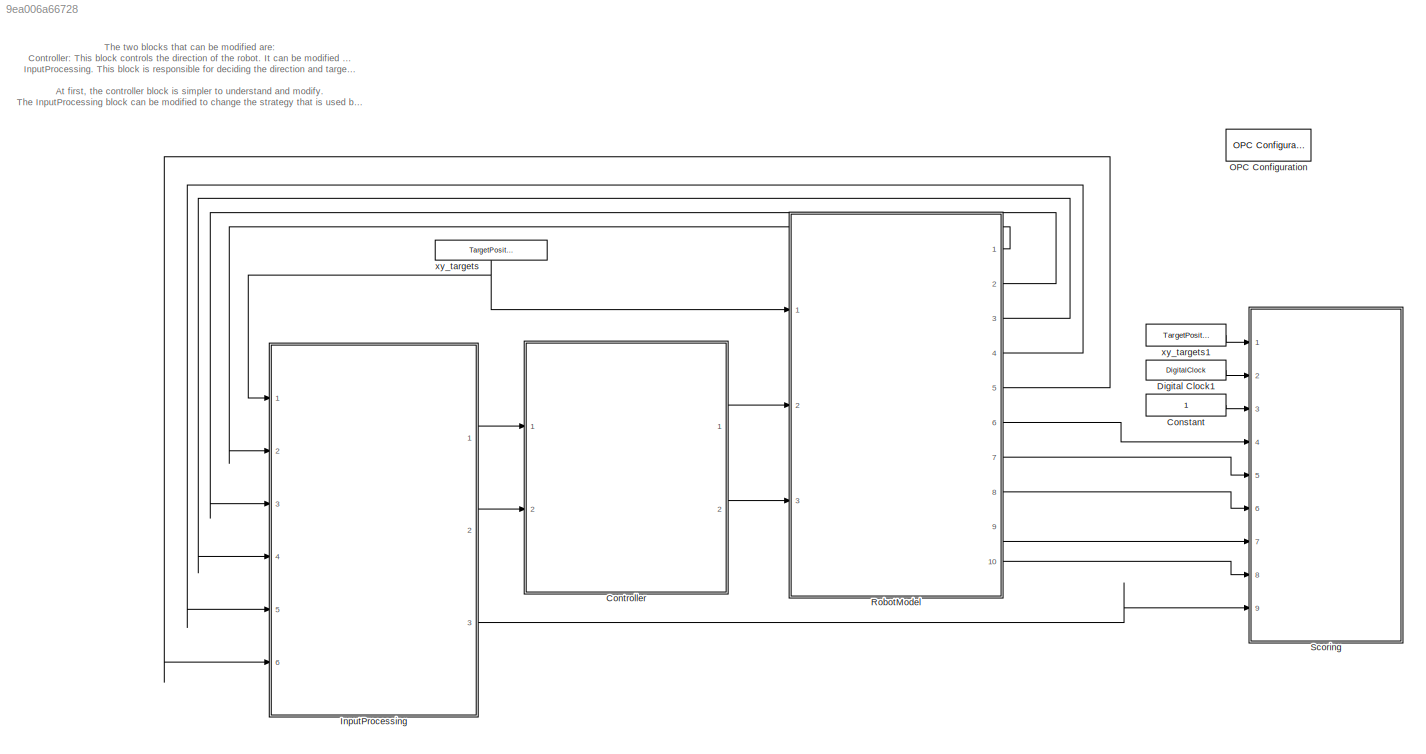
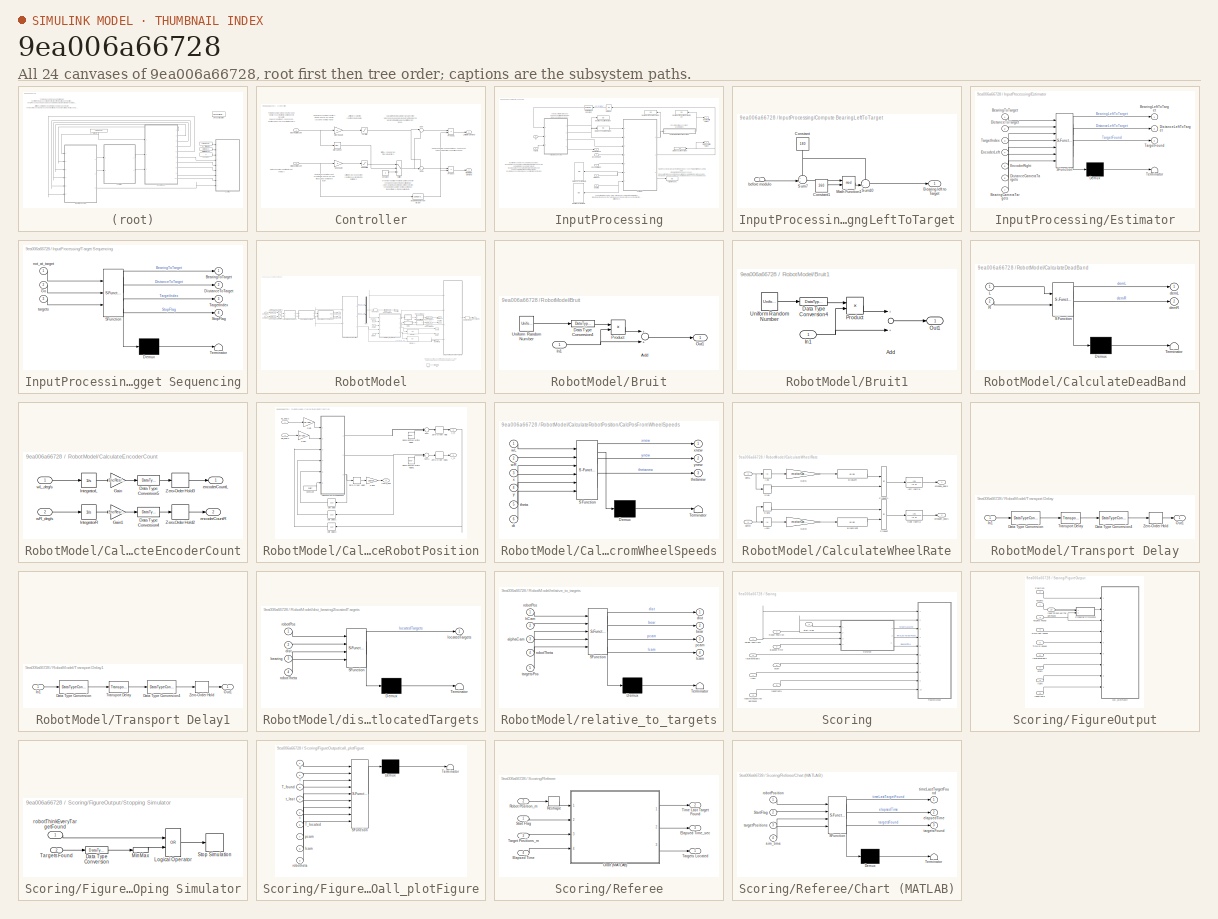
[diagram: thumbnail index - all 24 canvases of the model, root first then tree order]
MODEL slx_9ea006a66728
KIND model
CONFIG InitFcn = close('all','force');\n
CONFIG PostLoadFcn = loadRobotParameters\n\nallotedRunTime = 3*60; % [sec] Time allowed for run\n\n% starting parameters\n% The timer starts once the robot has moved a certain distance from the\n% starting point\nstartPos = [50 50]; % [cm]\nstartingRadius = 10; % [cm]\n\n% Target parameters\ntargetBoundaryRadius = 7; % [cm] radius considered at location\nstatTimeReq = 2.5; % [sec] minimum time robot must be at location\n
CONFIG StartFcn = reset(SimDisplay.getInstance());
BLOCK [Constant] Constant
  OutDataTypeStr = boolean
BLOCK [SubSystem] Controller
  Ports = [2, 2]
  RequestExecContextInheritance = off
  TreatAsAtomicUnit = on
BLOCK [Inport] Controller/Bearing to target
  IconDisplay = Port number
  OutDataTypeStr = single
  SamplingMode = Sample based
  SignalType = real
BLOCK [Constant] Controller/Constant
  OutDataTypeStr = single
  Value = 0
BLOCK [Inport] Controller/Distance to target
  IconDisplay = Port number
  Port = 2
  PortDimensions = 1
  SampleTime = dT
  SamplingMode = Sample based
  SignalType = real
BLOCK [Reference] Controller/Enable when far from target  REF=simulink/Logic and Bit
Operations/Compare
To Constant
  OutDataTypeStr = uint8
  Ports = [1, 1]
  SourceBlock = simulink/Logic and Bit\nOperations/Compare\nTo Constant
  SourceType = Compare To Constant
  ZeroCross = on
  const = 7
  relop = >=
BLOCK [Reference] Controller/Interval Test  REF=simulink/Logic and Bit
Operations/Interval Test
  AttributesFormatString = Upper = %<uplimit>\nLower = %<lowlimit>
  IntervalClosedLeft = on
  IntervalClosedRight = on
  OutDataTypeStr = boolean
  Ports = [1, 1]
  SourceBlock = simulink/Logic and Bit\nOperations/Interval Test
  SourceType = Interval Test
  lowlimit = -20
  uplimit = 20
BLOCK [Outport] Controller/Left Motor Demand
  IconDisplay = Port number
  OutDataTypeStr = single
BLOCK [Product] Controller/Product
  InputSameDT = off
  OutDataTypeStr = Inherit: Inherit via internal rule
  Ports = [2, 1]
  RndMeth = Floor
  SaturateOnIntegerOverflow = off
BLOCK [Product] Controller/Product1
  InputSameDT = off
  OutDataTypeStr = Inherit: Inherit via internal rule
  Ports = [2, 1]
  RndMeth = Floor
  SaturateOnIntegerOverflow = off
BLOCK [Outport] Controller/Right Motor Demand
  IconDisplay = Port number
  OutDataTypeStr = single
  Port = 2
BLOCK [Gain] Controller/Speed gain
  Gain = 3
  OutDataTypeStr = Inherit: Inherit via internal rule
  ParamDataTypeStr = Inherit: Inherit via internal rule
  SaturateOnIntegerOverflow = off
BLOCK [Saturate] Controller/Speed limit
  AttributesFormatString = Upper = %<UpperLimit>\nLower = %<LowerLimit>
  InputPortMap = u0
  LowerLimit = 0
  Ports = [1, 1]
  UpperLimit = 50
BLOCK [Gain] Controller/Steering gain
  OutDataTypeStr = Inherit: Inherit via internal rule
  ParamDataTypeStr = Inherit: Inherit via internal rule
  SaturateOnIntegerOverflow = off
BLOCK [Sum] Controller/Sum
  IconShape = round
  InputSameDT = off
  Inputs = |-+
  OutDataTypeStr = Inherit: Inherit via internal rule
  Ports = [2, 1]
  SaturateOnIntegerOverflow = off
BLOCK [Sum] Controller/Sum1
  IconShape = round
  InputSameDT = off
  Inputs = ++|
  OutDataTypeStr = Inherit: Inherit via internal rule
  Ports = [2, 1]
  SaturateOnIntegerOverflow = off
BLOCK [Switch] Controller/Switch
  InputSameDT = off
  SaturateOnIntegerOverflow = off
  Threshold = 1
BLOCK [Saturate] Controller/Turn limit
  AttributesFormatString = Upper = %<UpperLimit>\nLower = %<LowerLimit>
  InputPortMap = u0
  LowerLimit = -50
  Ports = [1, 1]
  UpperLimit = 50
BLOCK [DigitalClock] Digital Clock1
  SampleTime = Ts
BLOCK [SubSystem] InputProcessing
  Ports = [6, 3]
  RequestExecContextInheritance = off
BLOCK [Outport] InputProcessing/Bearing left to Target
  IconDisplay = Port number
  SampleTime = dT
BLOCK [Display] InputProcessing/BearingLeftToCurrentTarget
  Decimation = 1
  Ports = [1]
BLOCK [Display] InputProcessing/BearingLeftToCurrentTargetDeg
  Decimation = 1
  Ports = [1]
BLOCK [Display] InputProcessing/BearingTo All Targets
  Decimation = 1
  Ports = [1]
BLOCK [Display] InputProcessing/BearingTo Current Target 
  Decimation = 1
  Ports = [1]
BLOCK [Reference] InputProcessing/Compare To Constant  REF=simulink/Logic and Bit
Operations/Compare
To Constant
  OutDataTypeStr = boolean
  Ports = [1, 1]
  SourceBlock = simulink/Logic and Bit\nOperations/Compare\nTo Constant
  SourceType = Compare To Constant
  ZeroCross = on
  const = 7
  relop = >
BLOCK [SubSystem] InputProcessing/Compute BearingLeftToTarget
  Ports = [1, 1]
  RequestExecContextInheritance = off
BLOCK [Outport] InputProcessing/Compute BearingLeftToTarget/Bearing left to Target
  IconDisplay = Port number
  SampleTime = dT
BLOCK [Constant] InputProcessing/Compute BearingLeftToTarget/Constant
  OutDataTypeStr = Inherit: Inherit via back propagation
  Value = 180
BLOCK [Constant] InputProcessing/Compute BearingLeftToTarget/Constant1
  OutDataTypeStr = Inherit: Inherit via back propagation
  Value = 360
BLOCK [Math] InputProcessing/Compute BearingLeftToTarget/Math Function1
  Operator = mod
  Ports = [2, 1]
BLOCK [Sum] InputProcessing/Compute BearingLeftToTarget/Sum10
  IconShape = round
  InputSameDT = off
  Inputs = -+|
  OutDataTypeStr = Inherit: Inherit via internal rule
  Ports = [2, 1]
  SaturateOnIntegerOverflow = off
BLOCK [Sum] InputProcessing/Compute BearingLeftToTarget/Sum7
  IconShape = round
  InputSameDT = off
  Inputs = ++|
  OutDataTypeStr = Inherit: Inherit via internal rule
  Ports = [2, 1]
  SaturateOnIntegerOverflow = off
BLOCK [Inport] InputProcessing/Compute BearingLeftToTarget/before modulo
  IconDisplay = Port number
BLOCK [Outport] InputProcessing/Distance left to Target
  IconDisplay = Port number
  Port = 2
BLOCK [Display] InputProcessing/DistanceLeftToTarget
  Decimation = 1
  Ports = [1]
BLOCK [Display] InputProcessing/DistanceTo All Targets
  Decimation = 1
  Ports = [1]
BLOCK [Display] InputProcessing/DistanceTo Current Target
  Decimation = 1
  Ports = [1]
BLOCK [Inport] InputProcessing/Encoder Left
  IconDisplay = Port number
  OutDataTypeStr = class(intEncoder(0))
  Port = 2
BLOCK [Inport] InputProcessing/Encoder Right
  IconDisplay = Port number
  OutDataTypeStr = class(intEncoder(0))
  Port = 3
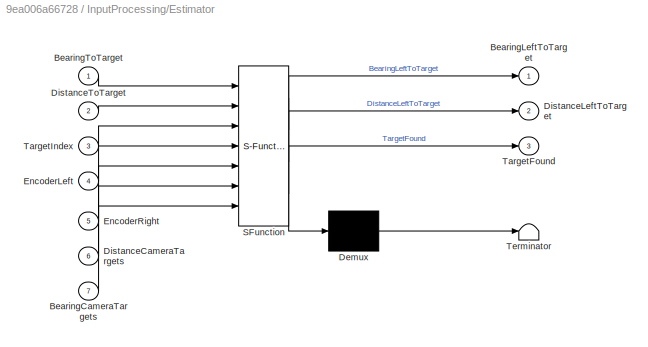
BLOCK [SubSystem] InputProcessing/Estimator
  ErrorFcn = Stateflow.Translate.translate
  PermitHierarchicalResolution = ExplicitOnly
  Ports = [7, 3]
  RequestExecContextInheritance = off
  SFBlockType = MATLAB Function
  TreatAsAtomicUnit = on
BLOCK [Demux] InputProcessing/Estimator/ Demux 
  Outputs = 1
  Ports = [1, 1]
BLOCK [S-Function] InputProcessing/Estimator/ SFunction 
  EnableBusSupport = on
  FunctionName = sf_sfun
  Parameters = AxleLength,EncRes,WheelRadius
  PortCounts = [7 4]
  Ports = [7, 4]
  Tag = Stateflow S-Function SimulationModel 1
BLOCK [Terminator] InputProcessing/Estimator/ Terminator 
BLOCK [Inport] InputProcessing/Estimator/BearingCameraTargets
  IconDisplay = Port number
  Port = 7
BLOCK [Outport] InputProcessing/Estimator/BearingLeftToTarget
  IconDisplay = Port number
BLOCK [Inport] InputProcessing/Estimator/BearingToTarget
  IconDisplay = Port number
BLOCK [Inport] InputProcessing/Estimator/DistanceCameraTargets
  IconDisplay = Port number
  Port = 6
BLOCK [Outport] InputProcessing/Estimator/DistanceLeftToTarget
  IconDisplay = Port number
  Port = 2
BLOCK [Inport] InputProcessing/Estimator/DistanceToTarget
  IconDisplay = Port number
  Port = 2
BLOCK [Inport] InputProcessing/Estimator/EncoderLeft
  IconDisplay = Port number
  Port = 4
BLOCK [Inport] InputProcessing/Estimator/EncoderRight
  IconDisplay = Port number
  Port = 5
BLOCK [Outport] InputProcessing/Estimator/TargetFound
  IconDisplay = Port number
  Port = 3
BLOCK [Inport] InputProcessing/Estimator/TargetIndex
  IconDisplay = Port number
  Port = 3
BLOCK [Inport] InputProcessing/Go
  IconDisplay = Port number
  Port = 6
BLOCK [SubSystem] InputProcessing/Target Sequencing
  ErrorFcn = Stateflow.Translate.translate
  PermitHierarchicalResolution = ExplicitOnly
  Ports = [3, 4]
  RequestExecContextInheritance = off
  SFBlockType = Chart
  TreatAsAtomicUnit = on
BLOCK [Demux] InputProcessing/Target Sequencing/ Demux 
  Outputs = 1
  Ports = [1, 1]
BLOCK [S-Function] InputProcessing/Target Sequencing/ SFunction 
  EnableBusSupport = on
  FunctionName = sf_sfun
  PortCounts = [3 5]
  Ports = [3, 5]
  Tag = Stateflow S-Function SimulationModel 4
BLOCK [Terminator] InputProcessing/Target Sequencing/ Terminator 
BLOCK [Outport] InputProcessing/Target Sequencing/BearingToTarget
  IconDisplay = Port number
BLOCK [Outport] InputProcessing/Target Sequencing/DistanceToTarget
  IconDisplay = Port number
  Port = 2
BLOCK [Inport] InputProcessing/Target Sequencing/Go
  IconDisplay = Port number
  Port = 2
BLOCK [Outport] InputProcessing/Target Sequencing/StopFlag
  IconDisplay = Port number
  Port = 4
BLOCK [Outport] InputProcessing/Target Sequencing/TargetIndex
  IconDisplay = Port number
  Port = 3
BLOCK [Inport] InputProcessing/Target Sequencing/not_at_target
  IconDisplay = Port number
BLOCK [Inport] InputProcessing/Target Sequencing/targets
  IconDisplay = Port number
  Port = 3
BLOCK [Display] InputProcessing/TargetFound
  Decimation = 1
  Ports = [1]
BLOCK [Inport] InputProcessing/Targets
  IconDisplay = Port number
BLOCK [UnitDelay] InputProcessing/Unit Delay
  InputProcessing = Elements as channels (sample based)
  SampleTime = dT
BLOCK [Outport] InputProcessing/allTargetDone
  IconDisplay = Port number
  Port = 3
BLOCK [Inport] InputProcessing/bearing
  IconDisplay = Port number
  Port = 5
BLOCK [Inport] InputProcessing/distance
  IconDisplay = Port number
  Port = 4
BLOCK [Reference] OPC Configuration  REF=opclib/OPC Configuration
  Ports = []
  SourceBlock = opclib/OPC Configuration
  SourceType = OPC Configuration
  beingUsed = on
  errMissingItems = Error
  errRTViolation = None
  errReadWrite = Warn
  errShutdown = Error
  rtEnable = on
  showLatency = off
  speedup = 1
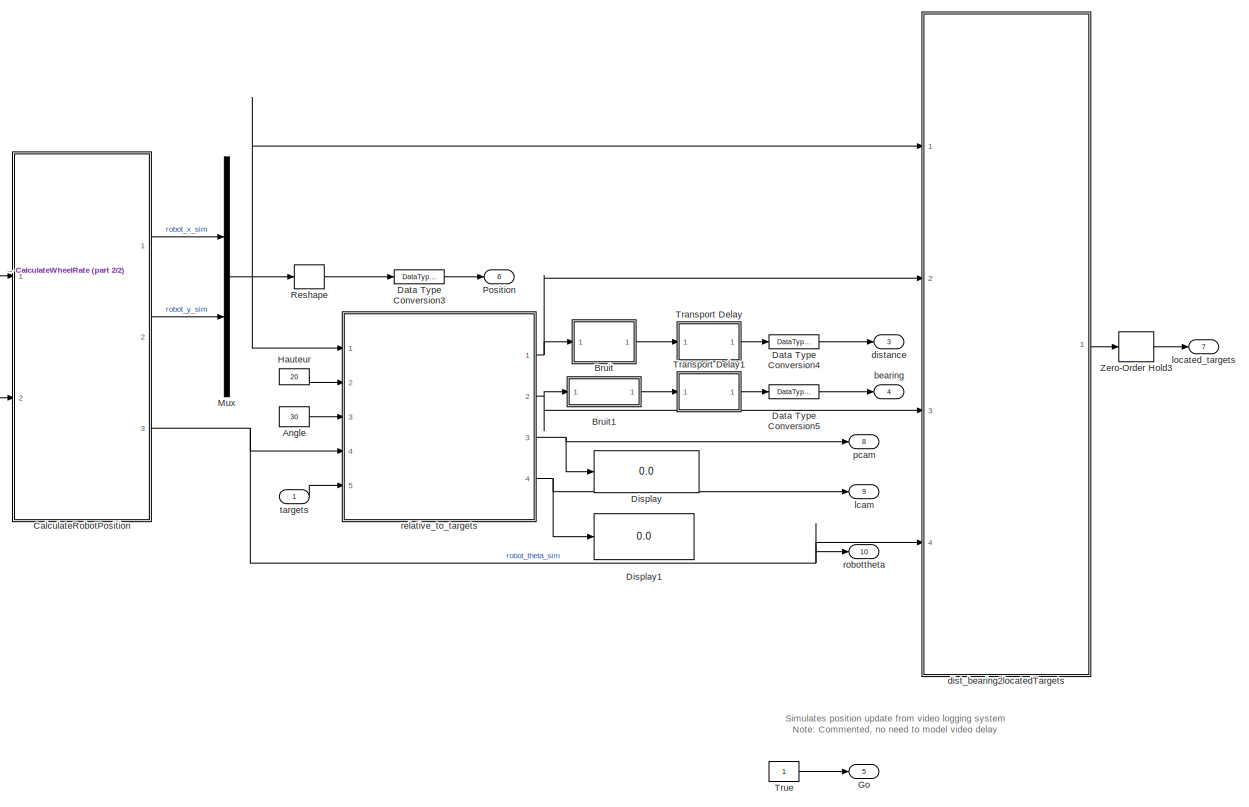
[diagram: RobotModel - part 1/2, right side, full height]
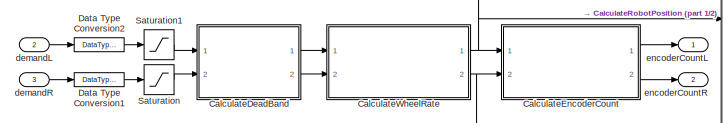
[diagram: RobotModel - part 2/2, middle left region]
BLOCK [SubSystem] RobotModel
  Ports = [3, 10]
  RequestExecContextInheritance = off
BLOCK [Constant] RobotModel/Angle
  OutMax = [60]
  OutMin = [30]
  SampleTime = 0.2
  Value = 30
BLOCK [SubSystem] RobotModel/Bruit
  Ports = [1, 1]
  RequestExecContextInheritance = off
BLOCK [Sum] RobotModel/Bruit/Add
  InputSameDT = off
  OutDataTypeStr = Inherit: Inherit via internal rule
  Ports = [2, 1]
  SaturateOnIntegerOverflow = off
BLOCK [DataTypeConversion] RobotModel/Bruit/Data Type Conversion4
  RndMeth = Floor
  SaturateOnIntegerOverflow = off
BLOCK [Inport] RobotModel/Bruit/In1
  IconDisplay = Port number
BLOCK [Outport] RobotModel/Bruit/Out1
  IconDisplay = Port number
BLOCK [Product] RobotModel/Bruit/Product
  InputSameDT = off
  OutDataTypeStr = Inherit: Inherit via internal rule
  Ports = [2, 1]
  RndMeth = Floor
  SaturateOnIntegerOverflow = off
BLOCK [UniformRandomNumber] RobotModel/Bruit/Uniform Random Number
  Maximum = 0.05
  Minimum = -0.05
  SampleTime = 0.2
BLOCK [SubSystem] RobotModel/Bruit1
  Ports = [1, 1]
  RequestExecContextInheritance = off
BLOCK [Sum] RobotModel/Bruit1/Add
  InputSameDT = off
  OutDataTypeStr = Inherit: Inherit via internal rule
  Ports = [2, 1]
  SaturateOnIntegerOverflow = off
BLOCK [DataTypeConversion] RobotModel/Bruit1/Data Type Conversion4
  RndMeth = Floor
  SaturateOnIntegerOverflow = off
BLOCK [Inport] RobotModel/Bruit1/In1
  IconDisplay = Port number
BLOCK [Outport] RobotModel/Bruit1/Out1
  IconDisplay = Port number
BLOCK [Product] RobotModel/Bruit1/Product
  InputSameDT = off
  OutDataTypeStr = Inherit: Inherit via internal rule
  Ports = [2, 1]
  RndMeth = Floor
  SaturateOnIntegerOverflow = off
BLOCK [UniformRandomNumber] RobotModel/Bruit1/Uniform Random Number
  Maximum = 0.05
  Minimum = -0.05
  SampleTime = 0.2
BLOCK [SubSystem] RobotModel/CalculateDeadBand
  ErrorFcn = Stateflow.Translate.translate
  PermitHierarchicalResolution = ExplicitOnly
  Ports = [2, 2]
  RequestExecContextInheritance = off
  SFBlockType = MATLAB Function
  TreatAsAtomicUnit = on
BLOCK [Demux] RobotModel/CalculateDeadBand/ Demux 
  Outputs = 1
  Ports = [1, 1]
BLOCK [S-Function] RobotModel/CalculateDeadBand/ SFunction 
  EnableBusSupport = on
  FunctionName = sf_sfun
  Parameters = motorDeadZoneFwd,motorDeadZoneRev
  PortCounts = [2 3]
  Ports = [2, 3]
  Tag = Stateflow S-Function SimulationModel 3
BLOCK [Terminator] RobotModel/CalculateDeadBand/ Terminator 
BLOCK [Inport] RobotModel/CalculateDeadBand/L
  IconDisplay = Port number
BLOCK [Inport] RobotModel/CalculateDeadBand/R
  IconDisplay = Port number
  Port = 2
BLOCK [Outport] RobotModel/CalculateDeadBand/demL
  IconDisplay = Port number
BLOCK [Outport] RobotModel/CalculateDeadBand/demR
  IconDisplay = Port number
  Port = 2
BLOCK [SubSystem] RobotModel/CalculateEncoderCount
  Ports = [2, 2]
  RequestExecContextInheritance = off
BLOCK [DataTypeConversion] RobotModel/CalculateEncoderCount/Data Type Conversion4
  RndMeth = Floor
  SaturateOnIntegerOverflow = off
BLOCK [DataTypeConversion] RobotModel/CalculateEncoderCount/Data Type Conversion5
  RndMeth = Floor
  SaturateOnIntegerOverflow = off
BLOCK [Gain] RobotModel/CalculateEncoderCount/Gain
  Gain = EncRes/360
  OutDataTypeStr = Inherit: Inherit via internal rule
  ParamDataTypeStr = Inherit: Inherit via internal rule
  SaturateOnIntegerOverflow = off
BLOCK [Gain] RobotModel/CalculateEncoderCount/Gain1
  Gain = EncRes/360
  OutDataTypeStr = Inherit: Inherit via internal rule
  ParamDataTypeStr = Inherit: Inherit via internal rule
  SaturateOnIntegerOverflow = off
BLOCK [Integrator] RobotModel/CalculateEncoderCount/IntegratorL
  InitialCondition = EncL_init
  Ports = [1, 1]
BLOCK [Integrator] RobotModel/CalculateEncoderCount/IntegratorR
  InitialCondition = EncR_init
  Ports = [1, 1]
BLOCK [ZeroOrderHold] RobotModel/CalculateEncoderCount/Zero-Order Hold2
  SampleTime = 0.1
BLOCK [ZeroOrderHold] RobotModel/CalculateEncoderCount/Zero-Order Hold3
  SampleTime = 0.1
BLOCK [Outport] RobotModel/CalculateEncoderCount/encoderCountL
  IconDisplay = Port number
BLOCK [Outport] RobotModel/CalculateEncoderCount/encoderCountR
  IconDisplay = Port number
  Port = 2
BLOCK [Inport] RobotModel/CalculateEncoderCount/wL_deg//s
  IconDisplay = Port number
BLOCK [Inport] RobotModel/CalculateEncoderCount/wR_deg//s
  IconDisplay = Port number
  Port = 2
BLOCK [SubSystem] RobotModel/CalculateRobotPosition
  Ports = [2, 3]
  RequestExecContextInheritance = off
BLOCK [Reference] RobotModel/CalculateRobotPosition/Band-Limited White Noise  REF=simulink/Sources/Band-Limited
White Noise
  Cov = 1e-5
  Ports = [0, 1]
  SourceBlock = simulink/Sources/Band-Limited\nWhite Noise
  SourceType = Band-Limited White Noise.
  Ts = dT
  VectorParams1D = on
  seed = [23341]
BLOCK [Reference] RobotModel/CalculateRobotPosition/Band-Limited White Noise1  REF=simulink/Sources/Band-Limited
White Noise
  Cov = 1e-5
  Ports = [0, 1]
  SourceBlock = simulink/Sources/Band-Limited\nWhite Noise
  SourceType = Band-Limited White Noise.
  Ts = dT
  VectorParams1D = on
  seed = [23342]
BLOCK [SubSystem] RobotModel/CalculateRobotPosition/CalcPosFromWheelSpeeds
  ErrorFcn = Stateflow.Translate.translate
  PermitHierarchicalResolution = ExplicitOnly
  Ports = [6, 3]
  RequestExecContextInheritance = off
  SFBlockType = MATLAB Function
  TreatAsAtomicUnit = on
BLOCK [Demux] RobotModel/CalculateRobotPosition/CalcPosFromWheelSpeeds/ Demux 
  Outputs = 1
  Ports = [1, 1]
BLOCK [S-Function] RobotModel/CalculateRobotPosition/CalcPosFromWheelSpeeds/ SFunction 
  EnableBusSupport = on
  FunctionName = sf_sfun
  Parameters = AxleLength,WheelRadius
  PortCounts = [6 4]
  Ports = [6, 4]
  Tag = Stateflow S-Function SimulationModel 9
BLOCK [Terminator] RobotModel/CalculateRobotPosition/CalcPosFromWheelSpeeds/ Terminator 
BLOCK [Inport] RobotModel/CalculateRobotPosition/CalcPosFromWheelSpeeds/dt
  IconDisplay = Port number
  Port = 6
BLOCK [Inport] RobotModel/CalculateRobotPosition/CalcPosFromWheelSpeeds/theta
  IconDisplay = Port number
  Port = 5
BLOCK [Outport] RobotModel/CalculateRobotPosition/CalcPosFromWheelSpeeds/thetanew
  IconDisplay = Port number
  Port = 3
BLOCK [Inport] RobotModel/CalculateRobotPosition/CalcPosFromWheelSpeeds/wL
  IconDisplay = Port number
BLOCK [Inport] RobotModel/CalculateRobotPosition/CalcPosFromWheelSpeeds/wR
  IconDisplay = Port number
  Port = 2
BLOCK [Inport] RobotModel/CalculateRobotPosition/CalcPosFromWheelSpeeds/x
  IconDisplay = Port number
  Port = 3
BLOCK [Outport] RobotModel/CalculateRobotPosition/CalcPosFromWheelSpeeds/xnew
  IconDisplay = Port number
BLOCK [Inport] RobotModel/CalculateRobotPosition/CalcPosFromWheelSpeeds/y
  IconDisplay = Port number
  Port = 4
BLOCK [Outport] RobotModel/CalculateRobotPosition/CalcPosFromWheelSpeeds/ynew
  IconDisplay = Port number
  Port = 2
BLOCK [Constant] RobotModel/CalculateRobotPosition/Constant
  Value = deltaT
BLOCK [Gain] RobotModel/CalculateRobotPosition/Gain
  Gain = pi/180
  OutDataTypeStr = Inherit: Inherit via internal rule
  ParamDataTypeStr = Inherit: Inherit via internal rule
  SaturateOnIntegerOverflow = off
BLOCK [Gain] RobotModel/CalculateRobotPosition/Gain1
  Gain = pi/180
  OutDataTypeStr = Inherit: Inherit via internal rule
  ParamDataTypeStr = Inherit: Inherit via internal rule
  SaturateOnIntegerOverflow = off
BLOCK [Gain] RobotModel/CalculateRobotPosition/Gain2
  Gain = 180/pi
  OutDataTypeStr = Inherit: Inherit via internal rule
  ParamDataTypeStr = Inherit: Inherit via internal rule
  SaturateOnIntegerOverflow = off
BLOCK [Sum] RobotModel/CalculateRobotPosition/Sum
  IconShape = round
  InputSameDT = off
  Inputs = |++
  OutDataTypeStr = Inherit: Inherit via internal rule
  Ports = [2, 1]
  SaturateOnIntegerOverflow = off
BLOCK [Sum] RobotModel/CalculateRobotPosition/Sum1
  IconShape = round
  InputSameDT = off
  Inputs = |++
  OutDataTypeStr = Inherit: Inherit via internal rule
  Ports = [2, 1]
  SaturateOnIntegerOverflow = off
BLOCK [UnitDelay] RobotModel/CalculateRobotPosition/Unit Delay
  InitialCondition = theta0
  InputProcessing = Elements as channels (sample based)
  SampleTime = -1
BLOCK [UnitDelay] RobotModel/CalculateRobotPosition/Unit Delay1
  InitialCondition = y0
  InputProcessing = Elements as channels (sample based)
  SampleTime = -1
BLOCK [UnitDelay] RobotModel/CalculateRobotPosition/Unit Delay2
  InitialCondition = x0
  InputProcessing = Elements as channels (sample based)
  SampleTime = -1
BLOCK [ZeroOrderHold] RobotModel/CalculateRobotPosition/Zero-Order Hold
  SampleTime = Ts
BLOCK [ZeroOrderHold] RobotModel/CalculateRobotPosition/Zero-Order Hold1
  SampleTime = Ts
BLOCK [ZeroOrderHold] RobotModel/CalculateRobotPosition/Zero-Order Hold2
  SampleTime = Ts
BLOCK [Outport] RobotModel/CalculateRobotPosition/theta_deg
  IconDisplay = Port number
  Port = 3
BLOCK [Inport] RobotModel/CalculateRobotPosition/wL_deg//s
  IconDisplay = Port number
BLOCK [Inport] RobotModel/CalculateRobotPosition/wR_deg//s
  IconDisplay = Port number
  Port = 2
BLOCK [Outport] RobotModel/CalculateRobotPosition/x_m
  IconDisplay = Port number
BLOCK [Outport] RobotModel/CalculateRobotPosition/y_m
  IconDisplay = Port number
  Port = 2
BLOCK [SubSystem] RobotModel/CalculateWheelRate
  Ports = [2, 2]
  RequestExecContextInheritance = off
BLOCK [TransferFcn] RobotModel/CalculateWheelRate/ left inertia
  Denominator = [1 4]
  Numerator = [4]
BLOCK [Abs] RobotModel/CalculateWheelRate/Abs
  SaturateOnIntegerOverflow = off
BLOCK [Abs] RobotModel/CalculateWheelRate/Abs1
  SaturateOnIntegerOverflow = off
BLOCK [Bias] RobotModel/CalculateWheelRate/BiasLeft
  Bias = motorBiasLeft*636/360
  SaturateOnIntegerOverflow = off
BLOCK [Bias] RobotModel/CalculateWheelRate/BiasRight
  Bias = motorBiasRight*636/360
  SaturateOnIntegerOverflow = off
BLOCK [Gain] RobotModel/CalculateWheelRate/Gain1
  Gain = motorGainLeft
  OutDataTypeStr = Inherit: Inherit via internal rule
  ParamDataTypeStr = Inherit: Inherit via internal rule
  SaturateOnIntegerOverflow = off
BLOCK [Gain] RobotModel/CalculateWheelRate/Gain3
  Gain = motorGainRight
  OutDataTypeStr = Inherit: Inherit via internal rule
  ParamDataTypeStr = Inherit: Inherit via internal rule
  SaturateOnIntegerOverflow = off
BLOCK [Product] RobotModel/CalculateWheelRate/Product
  InputSameDT = off
  OutDataTypeStr = Inherit: Inherit via internal rule
  Ports = [2, 1]
  SaturateOnIntegerOverflow = off
BLOCK [Product] RobotModel/CalculateWheelRate/Product1
  InputSameDT = off
  OutDataTypeStr = Inherit: Inherit via internal rule
  Ports = [2, 1]
  SaturateOnIntegerOverflow = off
BLOCK [Signum] RobotModel/CalculateWheelRate/Sign
BLOCK [Signum] RobotModel/CalculateWheelRate/Sign1
BLOCK [Inport] RobotModel/CalculateWheelRate/demL
  IconDisplay = Port number
BLOCK [Inport] RobotModel/CalculateWheelRate/demR
  IconDisplay = Port number
  Port = 2
BLOCK [Outport] RobotModel/CalculateWheelRate/omegaL_deg//s
  IconDisplay = Port number
BLOCK [Outport] RobotModel/CalculateWheelRate/omegaR_deg//s
  IconDisplay = Port number
  Port = 2
BLOCK [TransferFcn] RobotModel/CalculateWheelRate/right inertia
  Denominator = [1 4]
  Numerator = [4]
BLOCK [DataTypeConversion] RobotModel/Data Type Conversion1
  RndMeth = Floor
  SaturateOnIntegerOverflow = off
BLOCK [DataTypeConversion] RobotModel/Data Type Conversion2
  RndMeth = Floor
  SaturateOnIntegerOverflow = off
BLOCK [DataTypeConversion] RobotModel/Data Type Conversion3
  RndMeth = Floor
  SaturateOnIntegerOverflow = off
BLOCK [DataTypeConversion] RobotModel/Data Type Conversion4
  RndMeth = Floor
  SaturateOnIntegerOverflow = off
BLOCK [DataTypeConversion] RobotModel/Data Type Conversion5
  RndMeth = Floor
  SaturateOnIntegerOverflow = off
BLOCK [Display] RobotModel/Display
  Decimation = 1
  Ports = [1]
BLOCK [Display] RobotModel/Display1
  Decimation = 1
  Ports = [1]
BLOCK [Outport] RobotModel/Go
  IconDisplay = Port number
  Port = 5
BLOCK [Constant] RobotModel/Hauteur
  SampleTime = 0.2
  Value = 20
BLOCK [Mux] RobotModel/Mux
  DisplayOption = bar
  Inputs = 2
  Ports = [2, 1]
BLOCK [Outport] RobotModel/Position
  IconDisplay = Port number
  Port = 6
BLOCK [Reshape] RobotModel/Reshape
  OutputDimensionality = Row vector (2-D)
  Ports = [1, 1]
BLOCK [Saturate] RobotModel/Saturation
  InputPortMap = u0
  LowerLimit = -100
  Ports = [1, 1]
  UpperLimit = 100
BLOCK [Saturate] RobotModel/Saturation1
  InputPortMap = u0
  LowerLimit = -100
  Ports = [1, 1]
  UpperLimit = 100
BLOCK [SubSystem] RobotModel/Transport Delay
  Ports = [1, 1]
  RequestExecContextInheritance = off
BLOCK [DataTypeConversion] RobotModel/Transport Delay/Data Type Conversion
  OutDataTypeStr = double
  RndMeth = Floor
  SaturateOnIntegerOverflow = off
BLOCK [DataTypeConversion] RobotModel/Transport Delay/Data Type Conversion4
  OutDataTypeStr = single
  RndMeth = Floor
  SaturateOnIntegerOverflow = off
BLOCK [Inport] RobotModel/Transport Delay/In1
  IconDisplay = Port number
BLOCK [Outport] RobotModel/Transport Delay/Out1
  IconDisplay = Port number
BLOCK [TransportDelay] RobotModel/Transport Delay/Transport Delay
  BufferSize = initialBufferSize
  DelayTime = timeDelay
  InitialOutput = initialOutput
  PadeOrder = padeOrder
  Ports = [1, 1]
BLOCK [ZeroOrderHold] RobotModel/Transport Delay/Zero-Order Hold
  SampleTime = Ts
BLOCK [SubSystem] RobotModel/Transport Delay1
  Ports = [1, 1]
  RequestExecContextInheritance = off
BLOCK [DataTypeConversion] RobotModel/Transport Delay1/Data Type Conversion
  OutDataTypeStr = double
  RndMeth = Floor
  SaturateOnIntegerOverflow = off
BLOCK [DataTypeConversion] RobotModel/Transport Delay1/Data Type Conversion4
  OutDataTypeStr = single
  RndMeth = Floor
  SaturateOnIntegerOverflow = off
BLOCK [Inport] RobotModel/Transport Delay1/In1
  IconDisplay = Port number
BLOCK [Outport] RobotModel/Transport Delay1/Out1
  IconDisplay = Port number
BLOCK [TransportDelay] RobotModel/Transport Delay1/Transport Delay
  BufferSize = initialBufferSize
  DelayTime = timeDelay
  InitialOutput = initialOutput
  PadeOrder = padeOrder
  Ports = [1, 1]
BLOCK [ZeroOrderHold] RobotModel/Transport Delay1/Zero-Order Hold
  SampleTime = Ts
BLOCK [Constant] RobotModel/True
  OutMax = 1
  OutMin = 0
  SampleTime = 0.1
BLOCK [ZeroOrderHold] RobotModel/Zero-Order Hold3
  SampleTime = 0.2
BLOCK [Outport] RobotModel/bearing
  IconDisplay = Port number
  OutDataTypeStr = int8
  Port = 4
BLOCK [Inport] RobotModel/demandL
  IconDisplay = Port number
  Port = 2
  SampleTime = 0
BLOCK [Inport] RobotModel/demandR
  IconDisplay = Port number
  Port = 3
  SampleTime = 0
BLOCK [SubSystem] RobotModel/dist_bearing2locatedTargets
  ErrorFcn = Stateflow.Translate.translate
  PermitHierarchicalResolution = ExplicitOnly
  Ports = [4, 1]
  RequestExecContextInheritance = off
  SFBlockType = MATLAB Function
  TreatAsAtomicUnit = on
BLOCK [Demux] RobotModel/dist_bearing2locatedTargets/ Demux 
  Outputs = 1
  Ports = [1, 1]
BLOCK [S-Function] RobotModel/dist_bearing2locatedTargets/ SFunction 
  EnableBusSupport = on
  FunctionName = sf_sfun
  PortCounts = [4 2]
  Ports = [4, 2]
  Tag = Stateflow S-Function SimulationModel 8
BLOCK [Terminator] RobotModel/dist_bearing2locatedTargets/ Terminator 
BLOCK [Inport] RobotModel/dist_bearing2locatedTargets/bearing
  IconDisplay = Port number
  Port = 3
BLOCK [Inport] RobotModel/dist_bearing2locatedTargets/dist
  IconDisplay = Port number
  Port = 2
BLOCK [Outport] RobotModel/dist_bearing2locatedTargets/locatedTargets
  IconDisplay = Port number
BLOCK [Inport] RobotModel/dist_bearing2locatedTargets/robotPos
  IconDisplay = Port number
BLOCK [Inport] RobotModel/dist_bearing2locatedTargets/robotTheta
  IconDisplay = Port number
  Port = 4
BLOCK [Outport] RobotModel/distance
  IconDisplay = Port number
  OutDataTypeStr = int16
  Port = 3
BLOCK [Outport] RobotModel/encoderCountL
  IconDisplay = Port number
  OutDataTypeStr = class(intEncoder(0))
BLOCK [Outport] RobotModel/encoderCountR
  IconDisplay = Port number
  OutDataTypeStr = class(intEncoder(0))
  Port = 2
BLOCK [Outport] RobotModel/lcam
  IconDisplay = Port number
  Port = 9
BLOCK [Outport] RobotModel/located_targets
  IconDisplay = Port number
  Port = 7
BLOCK [Outport] RobotModel/pcam
  IconDisplay = Port number
  Port = 8
BLOCK [SubSystem] RobotModel/relative_to_targets
  ErrorFcn = Stateflow.Translate.translate
  PermitHierarchicalResolution = ExplicitOnly
  Ports = [5, 4]
  RequestExecContextInheritance = off
  SFBlockType = MATLAB Function
  TreatAsAtomicUnit = on
BLOCK [Demux] RobotModel/relative_to_targets/ Demux 
  Outputs = 1
  Ports = [1, 1]
BLOCK [S-Function] RobotModel/relative_to_targets/ SFunction 
  EnableBusSupport = on
  FunctionName = sf_sfun
  PortCounts = [5 5]
  Ports = [5, 5]
  Tag = Stateflow S-Function SimulationModel 7
BLOCK [Terminator] RobotModel/relative_to_targets/ Terminator 
BLOCK [Inport] RobotModel/relative_to_targets/alphaCam
  IconDisplay = Port number
  Port = 3
BLOCK [Outport] RobotModel/relative_to_targets/bear
  IconDisplay = Port number
  Port = 2
BLOCK [Outport] RobotModel/relative_to_targets/dist
  IconDisplay = Port number
BLOCK [Inport] RobotModel/relative_to_targets/hCam
  IconDisplay = Port number
  Port = 2
BLOCK [Outport] RobotModel/relative_to_targets/lcam
  IconDisplay = Port number
  Port = 4
BLOCK [Outport] RobotModel/relative_to_targets/pcam
  IconDisplay = Port number
  Port = 3
BLOCK [Inport] RobotModel/relative_to_targets/robotPos
  IconDisplay = Port number
BLOCK [Inport] RobotModel/relative_to_targets/robotTheta
  IconDisplay = Port number
  Port = 4
BLOCK [Inport] RobotModel/relative_to_targets/targetsPos
  IconDisplay = Port number
  Port = 5
BLOCK [Outport] RobotModel/robottheta
  IconDisplay = Port number
  Port = 10
BLOCK [Inport] RobotModel/targets
  IconDisplay = Port number
BLOCK [SubSystem] Scoring
  Ports = [9]
  RequestExecContextInheritance = off
BLOCK [Inport] Scoring/Elapsed Time
  IconDisplay = Port number
  Port = 2
BLOCK [SubSystem] Scoring/FigureOutput
  Ports = [10]
  RequestExecContextInheritance = off
  SimViewingDevice = on
  TreatAsAtomicUnit = on
BLOCK [Inport] Scoring/FigureOutput/Position
  IconDisplay = Port number
  Port = 2
BLOCK [SubSystem] Scoring/FigureOutput/Stopping Simulator
  Ports = [2]
  RequestExecContextInheritance = off
BLOCK [DataTypeConversion] Scoring/FigureOutput/Stopping Simulator/Data Type Conversion
  OutDataTypeStr = double
  RndMeth = Floor
  SaturateOnIntegerOverflow = off
BLOCK [Logic] Scoring/FigureOutput/Stopping Simulator/Logical Operator
  AllPortsSameDT = off
  Operator = OR
  OutDataTypeStr = boolean
  Ports = [2, 1]
BLOCK [MinMax] Scoring/FigureOutput/Stopping Simulator/MinMax
  InputSameDT = off
  Ports = [1, 1]
  SaturateOnIntegerOverflow = off
BLOCK [Stop] Scoring/FigureOutput/Stopping Simulator/Stop Simulation
BLOCK [Inport] Scoring/FigureOutput/Stopping Simulator/Targets Found
  IconDisplay = Port number
  Port = 2
BLOCK [Inport] Scoring/FigureOutput/Stopping Simulator/robotThinkEveryTargetFound
  IconDisplay = Port number
BLOCK [Inport] Scoring/FigureOutput/Targets
  IconDisplay = Port number
BLOCK [Inport] Scoring/FigureOutput/Targets Found
  IconDisplay = Port number
  Port = 3
BLOCK [Inport] Scoring/FigureOutput/Time Elapsed
  IconDisplay = Port number
  Port = 5
BLOCK [Inport] Scoring/FigureOutput/Time Last Found
  IconDisplay = Port number
  Port = 4
BLOCK [SubSystem] Scoring/FigureOutput/call_plotFigure
  ErrorFcn = Stateflow.Translate.translate
  PermitHierarchicalResolution = ExplicitOnly
  Ports = [9]
  RequestExecContextInheritance = off
  SFBlockType = MATLAB Function
  TreatAsAtomicUnit = on
BLOCK [Demux] Scoring/FigureOutput/call_plotFigure/ Demux 
  Outputs = 1
  Ports = [1, 1]
BLOCK [S-Function] Scoring/FigureOutput/call_plotFigure/ SFunction 
  EnableBusSupport = on
  FunctionName = sf_sfun
  PortCounts = [9 1]
  Ports = [9, 1]
  Tag = Stateflow S-Function SimulationModel 6
BLOCK [Terminator] Scoring/FigureOutput/call_plotFigure/ Terminator 
BLOCK [Inport] Scoring/FigureOutput/call_plotFigure/T
  IconDisplay = Port number
  Port = 2
BLOCK [Inport] Scoring/FigureOutput/call_plotFigure/T_found
  IconDisplay = Port number
  Port = 3
BLOCK [Inport] Scoring/FigureOutput/call_plotFigure/T_located
  IconDisplay = Port number
  Port = 6
BLOCK [Inport] Scoring/FigureOutput/call_plotFigure/X
  IconDisplay = Port number
BLOCK [Inport] Scoring/FigureOutput/call_plotFigure/lcam
  IconDisplay = Port number
  Port = 8
BLOCK [Inport] Scoring/FigureOutput/call_plotFigure/pcam
  IconDisplay = Port number
  Port = 7
BLOCK [Inport] Scoring/FigureOutput/call_plotFigure/robotheta
  IconDisplay = Port number
  Port = 9
BLOCK [Inport] Scoring/FigureOutput/call_plotFigure/t
  IconDisplay = Port number
  Port = 5
BLOCK [Inport] Scoring/FigureOutput/call_plotFigure/t_last
  IconDisplay = Port number
  Port = 4
BLOCK [Inport] Scoring/FigureOutput/lcam
  IconDisplay = Port number
  Port = 8
BLOCK [Inport] Scoring/FigureOutput/locatedTargets
  IconDisplay = Port number
  Port = 6
BLOCK [Inport] Scoring/FigureOutput/pcam
  IconDisplay = Port number
  Port = 7
BLOCK [Inport] Scoring/FigureOutput/robotThinkEveryTargetFound
  IconDisplay = Port number
  Port = 10
BLOCK [Inport] Scoring/FigureOutput/robottheta
  IconDisplay = Port number
  Port = 9
BLOCK [SubSystem] Scoring/Referee
  Ports = [4, 3]
  RequestExecContextInheritance = off
BLOCK [SubSystem] Scoring/Referee/Chart (MATLAB)
  ErrorFcn = Stateflow.Translate.translate
  PermitHierarchicalResolution = ExplicitOnly
  Ports = [4, 3]
  RequestExecContextInheritance = off
  SFBlockType = Chart
  TreatAsAtomicUnit = on
BLOCK [Demux] Scoring/Referee/Chart (MATLAB)/ Demux 
  Outputs = 1
  Ports = [1, 1]
BLOCK [S-Function] Scoring/Referee/Chart (MATLAB)/ SFunction 
  EnableBusSupport = on
  FunctionName = sf_sfun
  Parameters = allotedRunTime,startPos,startingRadius,statTimeReq,targetBoundaryRadius
  PortCounts = [4 4]
  Ports = [4, 4]
  Tag = Stateflow S-Function SimulationModel 5
BLOCK [Terminator] Scoring/Referee/Chart (MATLAB)/ Terminator 
BLOCK [Inport] Scoring/Referee/Chart (MATLAB)/StartFlag
  IconDisplay = Port number
  Port = 2
BLOCK [Outport] Scoring/Referee/Chart (MATLAB)/elapsedTime
  IconDisplay = Port number
  Port = 2
BLOCK [Inport] Scoring/Referee/Chart (MATLAB)/robotPosition
  IconDisplay = Port number
BLOCK [Inport] Scoring/Referee/Chart (MATLAB)/sim_time
  IconDisplay = Port number
  Port = 4
BLOCK [Inport] Scoring/Referee/Chart (MATLAB)/targetPositions
  IconDisplay = Port number
  Port = 3
BLOCK [Outport] Scoring/Referee/Chart (MATLAB)/targetsFound
  IconDisplay = Port number
  Port = 3
BLOCK [Outport] Scoring/Referee/Chart (MATLAB)/timeLastTargetFound
  IconDisplay = Port number
BLOCK [Inport] Scoring/Referee/Elapsed Time
  IconDisplay = Port number
  Port = 4
  SampleTime = Ts
BLOCK [Outport] Scoring/Referee/Elapsed Time_sec
  IconDisplay = Port number
  Port = 3
  PortDimensions = 1
BLOCK [Reshape] Scoring/Referee/Reshape
  OutputDimensionality = Row vector (2-D)
  Ports = [1, 1]
BLOCK [Inport] Scoring/Referee/Robot Position_m
  IconDisplay = Port number
  Port = 2
  SampleTime = Ts
BLOCK [Inport] Scoring/Referee/Start Flag
  IconDisplay = Port number
  OutDataTypeStr = boolean
  SampleTime = Ts
BLOCK [Inport] Scoring/Referee/Target Positions_m
  IconDisplay = Port number
  Port = 3
  SampleTime = Ts
BLOCK [Outport] Scoring/Referee/Targets Located
  IconDisplay = Port number
BLOCK [Outport] Scoring/Referee/Time Last Target Found
  IconDisplay = Port number
  Port = 2
  PortDimensions = 1
  VarSizeSig = No
BLOCK [Inport] Scoring/Robot Position
  IconDisplay = Port number
  Port = 4
BLOCK [Inport] Scoring/Start Flag
  IconDisplay = Port number
  Port = 3
BLOCK [Inport] Scoring/Target Positions
  IconDisplay = Port number
BLOCK [Inport] Scoring/lcam
  IconDisplay = Port number
  Port = 7
BLOCK [Inport] Scoring/locatedTargets
  IconDisplay = Port number
  Port = 5
BLOCK [Inport] Scoring/pcam
  IconDisplay = Port number
  Port = 6
BLOCK [Inport] Scoring/robotThinkEveryTargetFound
  IconDisplay = Port number
  Port = 9
BLOCK [Inport] Scoring/robottheta
  IconDisplay = Port number
  Port = 8
BLOCK [Constant] xy_targets
  OutDataTypeStr = single
  SampleTime = 1
  Value = TargetPositions
BLOCK [Constant] xy_targets1
  OutDataTypeStr = single
  SampleTime = 1
  Value = TargetPositions
ANNOTATION (root): The two blocks that can be modified are: Controller: This block controls the direction of the robot. It can be modified to adjust the speed at which the robot will move to its indicated target and direction. InputProcessing. This block is responsible for deciding the direction and target that will be chosen by the robot. At first, the controller block is simpler to understand and modify. The Input...<+166ch>
ANNOTATION Controller: Calculate the individual motor signals from the steering and speed signals. Subtract the steering signal from the left wheel and add it to the right wheel
ANNOTATION Controller: Demanded motor speeds between -100 and 100 Values outside of this range will be capped
ANNOTATION Controller: Distance from the robot to the target in meters
ANNOTATION Controller: How quickly should the robot drive to the target? A larger gain will cause the robot to move faster
ANNOTATION Controller: How quickly should the robot turn to the target? A larger gain will cause the robot to turn faster
ANNOTATION Controller: If within +- 20 deg, drive. Otherwise just turn.
ANNOTATION Controller: Limit the forward speed of the robot to ensure it retains the ability to turn
ANNOTATION Controller: Limit the turn rate of the robot to avoid wheel slip.
ANNOTATION Controller: This is the number of degrees the robot must turn such that the target is in directly in front of it. Values are between -180 and 180, positive values represent a left hand turn
ANNOTATION Controller: When the robot is far from the target the controller should be enabled (this block will output 1) As the robot gets close to the target the controller should stop to enable to robot to coast the last few centimeters (this block will output 0)
ANNOTATION InputProcessing: Ensure robot takes shortest angle to target.
ANNOTATION InputProcessing: Input from the camera. The camera input contains: - Input 4: distance: The distance to the targets that are seen by the camera (DistanceCameraTargets) - Input 5: bearing: The bearing to the targets that are seen by the camera. (BearingCameraTargets) - Input 6: ImageCounter: An image counter, that is incremented each time the camera is reading a new image. Warning: DistanceCameraTargets and Bearing...<+207ch>
ANNOTATION InputProcessing: TargetFound indicates whether the robot has "seen" its target within the camera data. If non-zero it corresponds to the index within the camera targets corresponding to the target that has been chosen. This display can be used to check that the robot has choosen the intended target.
ANNOTATION InputProcessing: The Estimator block is the "brain" of the robot. According to the information read from the camera and the target objective given by the TargetSequencing block, it chooses the direction towards which the robot will try to move.
ANNOTATION InputProcessing: This block iterates through a sequence of targets, stopping at each one for 3 seconds.
ANNOTATION RobotModel: Simulates position update from video logging system Note: Commented, no need to model video delay
LINE Constant:1 -> Scoring:3
NET Controller/Bearing to target:1 -> Controller/Interval Test:1, Controller/Steering gain:1
LINE Controller/Constant:1 -> Controller/Switch:3
NET Controller/Distance to target:1 -> Controller/Enable when far from target:1, Controller/Speed gain:1
NET Controller/Enable when far from target:1 -> Controller/Product1:2, Controller/Product:2
LINE Controller/Interval Test:1 -> Controller/Switch:2
LINE Controller/Product1:1 -> Controller/Left Motor Demand:1
LINE Controller/Product:1 -> Controller/Right Motor Demand:1
LINE Controller/Speed gain:1 -> Controller/Speed limit:1
LINE Controller/Speed limit:1 -> Controller/Switch:1
LINE Controller/Steering gain:1 -> Controller/Turn limit:1
LINE Controller/Sum1:1 -> Controller/Product:1
LINE Controller/Sum:1 -> Controller/Product1:1
NET Controller/Switch:1 -> Controller/Sum1:2, Controller/Sum:2
NET Controller/Turn limit:1 -> Controller/Sum1:1, Controller/Sum:1
LINE Controller:1 -> RobotModel:2
LINE Controller:2 -> RobotModel:3
LINE Digital Clock1:1 -> Scoring:2
LINE InputProcessing/Compare To Constant:1 -> InputProcessing/Target Sequencing:1
LINE InputProcessing/Compute BearingLeftToTarget/Constant1:1 -> InputProcessing/Compute BearingLeftToTarget/Math Function1:2
NET InputProcessing/Compute BearingLeftToTarget/Constant:1 -> InputProcessing/Compute BearingLeftToTarget/Sum10:1, InputProcessing/Compute BearingLeftToTarget/Sum7:1
LINE InputProcessing/Compute BearingLeftToTarget/Math Function1:1 -> InputProcessing/Compute BearingLeftToTarget/Sum10:2
LINE InputProcessing/Compute BearingLeftToTarget/Sum10:1 -> InputProcessing/Compute BearingLeftToTarget/Bearing left to Target:1
LINE InputProcessing/Compute BearingLeftToTarget/Sum7:1 -> InputProcessing/Compute BearingLeftToTarget/Math Function1:1
LINE InputProcessing/Compute BearingLeftToTarget/before modulo:1 -> InputProcessing/Compute BearingLeftToTarget/Sum7:2
NET InputProcessing/Compute BearingLeftToTarget:1 -> InputProcessing/Bearing left to Target:1, InputProcessing/BearingLeftToCurrentTargetDeg:1
LINE InputProcessing/Encoder Left:1 -> InputProcessing/Estimator:4
LINE InputProcessing/Encoder Right:1 -> InputProcessing/Estimator:5
NET InputProcessing/Estimator:1 -> InputProcessing/BearingLeftToCurrentTarget:1, InputProcessing/Compute BearingLeftToTarget:1
NET InputProcessing/Estimator:2 -> InputProcessing/Distance left to Target:1, InputProcessing/DistanceLeftToTarget:1, InputProcessing/Unit Delay:1
LINE InputProcessing/Estimator:3 -> InputProcessing/TargetFound:1
LINE InputProcessing/Go:1 -> InputProcessing/Target Sequencing:2
NET InputProcessing/Target Sequencing:1 -> InputProcessing/BearingTo Current Target :1, InputProcessing/Estimator:1
NET InputProcessing/Target Sequencing:2 -> InputProcessing/DistanceTo Current Target:1, InputProcessing/Estimator:2
LINE InputProcessing/Target Sequencing:3 -> InputProcessing/Estimator:3
LINE InputProcessing/Target Sequencing:4 -> InputProcessing/allTargetDone:1
LINE InputProcessing/Targets:1 -> InputProcessing/Target Sequencing:3
LINE InputProcessing/Unit Delay:1 -> InputProcessing/Compare To Constant:1
NET InputProcessing/bearing:1 -> InputProcessing/BearingTo All Targets:1, InputProcessing/Estimator:7
NET InputProcessing/distance:1 -> InputProcessing/DistanceTo All Targets:1, InputProcessing/Estimator:6
LINE InputProcessing:1 -> Controller:1
LINE InputProcessing:2 -> Controller:2
LINE InputProcessing:3 -> Scoring:9
LINE RobotModel/Angle:1 -> RobotModel/relative_to_targets:3
LINE RobotModel/Bruit/Add:1 -> RobotModel/Bruit/Out1:1
LINE RobotModel/Bruit/Data Type Conversion4:1 -> RobotModel/Bruit/Product:1
NET RobotModel/Bruit/In1:1 -> RobotModel/Bruit/Add:2, RobotModel/Bruit/Product:2
LINE RobotModel/Bruit/Product:1 -> RobotModel/Bruit/Add:1
LINE RobotModel/Bruit/Uniform Random Number:1 -> RobotModel/Bruit/Data Type Conversion4:1
LINE RobotModel/Bruit1/Add:1 -> RobotModel/Bruit1/Out1:1
LINE RobotModel/Bruit1/Data Type Conversion4:1 -> RobotModel/Bruit1/Product:1
NET RobotModel/Bruit1/In1:1 -> RobotModel/Bruit1/Add:2, RobotModel/Bruit1/Product:2
LINE RobotModel/Bruit1/Product:1 -> RobotModel/Bruit1/Add:1
LINE RobotModel/Bruit1/Uniform Random Number:1 -> RobotModel/Bruit1/Data Type Conversion4:1
LINE RobotModel/Bruit1:1 -> RobotModel/Transport Delay1:1
LINE RobotModel/Bruit:1 -> RobotModel/Transport Delay:1
LINE RobotModel/CalculateDeadBand:1 -> RobotModel/CalculateWheelRate:1
LINE RobotModel/CalculateDeadBand:2 -> RobotModel/CalculateWheelRate:2
LINE RobotModel/CalculateEncoderCount/Data Type Conversion4:1 -> RobotModel/CalculateEncoderCount/Zero-Order Hold2:1
LINE RobotModel/CalculateEncoderCount/Data Type Conversion5:1 -> RobotModel/CalculateEncoderCount/Zero-Order Hold3:1
LINE RobotModel/CalculateEncoderCount/Gain1:1 -> RobotModel/CalculateEncoderCount/Data Type Conversion4:1
LINE RobotModel/CalculateEncoderCount/Gain:1 -> RobotModel/CalculateEncoderCount/Data Type Conversion5:1
LINE RobotModel/CalculateEncoderCount/IntegratorL:1 -> RobotModel/CalculateEncoderCount/Gain:1
LINE RobotModel/CalculateEncoderCount/IntegratorR:1 -> RobotModel/CalculateEncoderCount/Gain1:1
LINE RobotModel/CalculateEncoderCount/Zero-Order Hold2:1 -> RobotModel/CalculateEncoderCount/encoderCountR:1
LINE RobotModel/CalculateEncoderCount/Zero-Order Hold3:1 -> RobotModel/CalculateEncoderCount/encoderCountL:1
LINE RobotModel/CalculateEncoderCount/wL_deg//s:1 -> RobotModel/CalculateEncoderCount/IntegratorL:1
LINE RobotModel/CalculateEncoderCount/wR_deg//s:1 -> RobotModel/CalculateEncoderCount/IntegratorR:1
LINE RobotModel/CalculateEncoderCount:1 -> RobotModel/encoderCountL:1
LINE RobotModel/CalculateEncoderCount:2 -> RobotModel/encoderCountR:1
LINE RobotModel/CalculateRobotPosition/Band-Limited White Noise1:1 -> RobotModel/CalculateRobotPosition/Sum1:2
LINE RobotModel/CalculateRobotPosition/Band-Limited White Noise:1 -> RobotModel/CalculateRobotPosition/Sum:2
NET RobotModel/CalculateRobotPosition/CalcPosFromWheelSpeeds:1 -> RobotModel/CalculateRobotPosition/Sum:1, RobotModel/CalculateRobotPosition/Unit Delay2:1
NET RobotModel/CalculateRobotPosition/CalcPosFromWheelSpeeds:2 -> RobotModel/CalculateRobotPosition/Sum1:1, RobotModel/CalculateRobotPosition/Unit Delay1:1
NET RobotModel/CalculateRobotPosition/CalcPosFromWheelSpeeds:3 -> RobotModel/CalculateRobotPosition/Unit Delay:1, RobotModel/CalculateRobotPosition/Zero-Order Hold2:1
LINE RobotModel/CalculateRobotPosition/Constant:1 -> RobotModel/CalculateRobotPosition/CalcPosFromWheelSpeeds:6
LINE RobotModel/CalculateRobotPosition/Gain1:1 -> RobotModel/CalculateRobotPosition/CalcPosFromWheelSpeeds:2
LINE RobotModel/CalculateRobotPosition/Gain2:1 -> RobotModel/CalculateRobotPosition/theta_deg:1
LINE RobotModel/CalculateRobotPosition/Gain:1 -> RobotModel/CalculateRobotPosition/CalcPosFromWheelSpeeds:1
LINE RobotModel/CalculateRobotPosition/Sum1:1 -> RobotModel/CalculateRobotPosition/Zero-Order Hold1:1
LINE RobotModel/CalculateRobotPosition/Sum:1 -> RobotModel/CalculateRobotPosition/Zero-Order Hold:1
LINE RobotModel/CalculateRobotPosition/Unit Delay1:1 -> RobotModel/CalculateRobotPosition/CalcPosFromWheelSpeeds:4
LINE RobotModel/CalculateRobotPosition/Unit Delay2:1 -> RobotModel/CalculateRobotPosition/CalcPosFromWheelSpeeds:3
LINE RobotModel/CalculateRobotPosition/Unit Delay:1 -> RobotModel/CalculateRobotPosition/CalcPosFromWheelSpeeds:5
LINE RobotModel/CalculateRobotPosition/Zero-Order Hold1:1 -> RobotModel/CalculateRobotPosition/y_m:1
LINE RobotModel/CalculateRobotPosition/Zero-Order Hold2:1 -> RobotModel/CalculateRobotPosition/Gain2:1
LINE RobotModel/CalculateRobotPosition/Zero-Order Hold:1 -> RobotModel/CalculateRobotPosition/x_m:1
LINE RobotModel/CalculateRobotPosition/wL_deg//s:1 -> RobotModel/CalculateRobotPosition/Gain:1
LINE RobotModel/CalculateRobotPosition/wR_deg//s:1 -> RobotModel/CalculateRobotPosition/Gain1:1
LINE RobotModel/CalculateRobotPosition:1 -> RobotModel/Mux:1
LINE RobotModel/CalculateRobotPosition:2 -> RobotModel/Mux:2
NET RobotModel/CalculateRobotPosition:3 -> RobotModel/dist_bearing2locatedTargets:4, RobotModel/relative_to_targets:4, RobotModel/robottheta:1
LINE RobotModel/CalculateWheelRate/ left inertia:1 -> RobotModel/CalculateWheelRate/omegaL_deg//s:1
LINE RobotModel/CalculateWheelRate/Abs1:1 -> RobotModel/CalculateWheelRate/Gain3:1
LINE RobotModel/CalculateWheelRate/Abs:1 -> RobotModel/CalculateWheelRate/Gain1:1
LINE RobotModel/CalculateWheelRate/BiasLeft:1 -> RobotModel/CalculateWheelRate/Product1:1
LINE RobotModel/CalculateWheelRate/BiasRight:1 -> RobotModel/CalculateWheelRate/Product:2
LINE RobotModel/CalculateWheelRate/Gain1:1 -> RobotModel/CalculateWheelRate/BiasLeft:1
LINE RobotModel/CalculateWheelRate/Gain3:1 -> RobotModel/CalculateWheelRate/BiasRight:1
LINE RobotModel/CalculateWheelRate/Product1:1 -> RobotModel/CalculateWheelRate/ left inertia:1
LINE RobotModel/CalculateWheelRate/Product:1 -> RobotModel/CalculateWheelRate/right inertia:1
LINE RobotModel/CalculateWheelRate/Sign1:1 -> RobotModel/CalculateWheelRate/Product:1
LINE RobotModel/CalculateWheelRate/Sign:1 -> RobotModel/CalculateWheelRate/Product1:2
NET RobotModel/CalculateWheelRate/demL:1 -> RobotModel/CalculateWheelRate/Abs:1, RobotModel/CalculateWheelRate/Sign:1
NET RobotModel/CalculateWheelRate/demR:1 -> RobotModel/CalculateWheelRate/Abs1:1, RobotModel/CalculateWheelRate/Sign1:1
LINE RobotModel/CalculateWheelRate/right inertia:1 -> RobotModel/CalculateWheelRate/omegaR_deg//s:1
NET RobotModel/CalculateWheelRate:1 -> RobotModel/CalculateEncoderCount:1, RobotModel/CalculateRobotPosition:1
NET RobotModel/CalculateWheelRate:2 -> RobotModel/CalculateEncoderCount:2, RobotModel/CalculateRobotPosition:2
LINE RobotModel/Data Type Conversion1:1 -> RobotModel/Saturation:1
LINE RobotModel/Data Type Conversion2:1 -> RobotModel/Saturation1:1
LINE RobotModel/Data Type Conversion3:1 -> RobotModel/Position:1
LINE RobotModel/Data Type Conversion4:1 -> RobotModel/distance:1
LINE RobotModel/Data Type Conversion5:1 -> RobotModel/bearing:1
LINE RobotModel/Hauteur:1 -> RobotModel/relative_to_targets:2
NET RobotModel/Mux:1 -> RobotModel/Reshape:1, RobotModel/dist_bearing2locatedTargets:1, RobotModel/relative_to_targets:1
LINE RobotModel/Reshape:1 -> RobotModel/Data Type Conversion3:1
LINE RobotModel/Saturation1:1 -> RobotModel/CalculateDeadBand:1
LINE RobotModel/Saturation:1 -> RobotModel/CalculateDeadBand:2
LINE RobotModel/Transport Delay/Data Type Conversion4:1 -> RobotModel/Transport Delay/Zero-Order Hold:1
LINE RobotModel/Transport Delay/Data Type Conversion:1 -> RobotModel/Transport Delay/Transport Delay:1
LINE RobotModel/Transport Delay/In1:1 -> RobotModel/Transport Delay/Data Type Conversion:1
LINE RobotModel/Transport Delay/Transport Delay:1 -> RobotModel/Transport Delay/Data Type Conversion4:1
LINE RobotModel/Transport Delay/Zero-Order Hold:1 -> RobotModel/Transport Delay/Out1:1
LINE RobotModel/Transport Delay1/Data Type Conversion4:1 -> RobotModel/Transport Delay1/Zero-Order Hold:1
LINE RobotModel/Transport Delay1/Data Type Conversion:1 -> RobotModel/Transport Delay1/Transport Delay:1
LINE RobotModel/Transport Delay1/In1:1 -> RobotModel/Transport Delay1/Data Type Conversion:1
LINE RobotModel/Transport Delay1/Transport Delay:1 -> RobotModel/Transport Delay1/Data Type Conversion4:1
LINE RobotModel/Transport Delay1/Zero-Order Hold:1 -> RobotModel/Transport Delay1/Out1:1
LINE RobotModel/Transport Delay1:1 -> RobotModel/Data Type Conversion5:1
LINE RobotModel/Transport Delay:1 -> RobotModel/Data Type Conversion4:1
LINE RobotModel/True:1 -> RobotModel/Go:1
LINE RobotModel/Zero-Order Hold3:1 -> RobotModel/located_targets:1
LINE RobotModel/demandL:1 -> RobotModel/Data Type Conversion2:1
LINE RobotModel/demandR:1 -> RobotModel/Data Type Conversion1:1
LINE RobotModel/dist_bearing2locatedTargets:1 -> RobotModel/Zero-Order Hold3:1
NET RobotModel/relative_to_targets:1 -> RobotModel/Bruit:1, RobotModel/dist_bearing2locatedTargets:2
NET RobotModel/relative_to_targets:2 -> RobotModel/Bruit1:1, RobotModel/dist_bearing2locatedTargets:3
NET RobotModel/relative_to_targets:3 -> RobotModel/Display:1, RobotModel/pcam:1
NET RobotModel/relative_to_targets:4 -> RobotModel/Display1:1, RobotModel/lcam:1
LINE RobotModel/targets:1 -> RobotModel/relative_to_targets:5
LINE RobotModel:1 -> InputProcessing:2
LINE RobotModel:10 -> Scoring:8
LINE RobotModel:2 -> InputProcessing:3
LINE RobotModel:3 -> InputProcessing:4
LINE RobotModel:4 -> InputProcessing:5
LINE RobotModel:5 -> InputProcessing:6
LINE RobotModel:6 -> Scoring:4
LINE RobotModel:7 -> Scoring:5
LINE RobotModel:8 -> Scoring:6
LINE RobotModel:9 -> Scoring:7
LINE Scoring/Elapsed Time:1 -> Scoring/Referee:4
LINE Scoring/FigureOutput/Position:1 -> Scoring/FigureOutput/call_plotFigure:1
LINE Scoring/FigureOutput/Stopping Simulator/Data Type Conversion:1 -> Scoring/FigureOutput/Stopping Simulator/MinMax:1
LINE Scoring/FigureOutput/Stopping Simulator/Logical Operator:1 -> Scoring/FigureOutput/Stopping Simulator/Stop Simulation:1
LINE Scoring/FigureOutput/Stopping Simulator/MinMax:1 -> Scoring/FigureOutput/Stopping Simulator/Logical Operator:2
LINE Scoring/FigureOutput/Stopping Simulator/Targets Found:1 -> Scoring/FigureOutput/Stopping Simulator/Data Type Conversion:1
LINE Scoring/FigureOutput/Stopping Simulator/robotThinkEveryTargetFound:1 -> Scoring/FigureOutput/Stopping Simulator/Logical Operator:1
NET Scoring/FigureOutput/Targets Found:1 -> Scoring/FigureOutput/Stopping Simulator:2, Scoring/FigureOutput/call_plotFigure:3
LINE Scoring/FigureOutput/Targets:1 -> Scoring/FigureOutput/call_plotFigure:2
LINE Scoring/FigureOutput/Time Elapsed:1 -> Scoring/FigureOutput/call_plotFigure:5
LINE Scoring/FigureOutput/Time Last Found:1 -> Scoring/FigureOutput/call_plotFigure:4
LINE Scoring/FigureOutput/lcam:1 -> Scoring/FigureOutput/call_plotFigure:8
LINE Scoring/FigureOutput/locatedTargets:1 -> Scoring/FigureOutput/call_plotFigure:6
LINE Scoring/FigureOutput/pcam:1 -> Scoring/FigureOutput/call_plotFigure:7
LINE Scoring/FigureOutput/robotThinkEveryTargetFound:1 -> Scoring/FigureOutput/Stopping Simulator:1
LINE Scoring/FigureOutput/robottheta:1 -> Scoring/FigureOutput/call_plotFigure:9
LINE Scoring/Referee/Chart (MATLAB):1 -> Scoring/Referee/Time Last Target Found:1
LINE Scoring/Referee/Chart (MATLAB):2 -> Scoring/Referee/Elapsed Time_sec:1
LINE Scoring/Referee/Chart (MATLAB):3 -> Scoring/Referee/Targets Located:1
LINE Scoring/Referee/Elapsed Time:1 -> Scoring/Referee/Chart (MATLAB):4
LINE Scoring/Referee/Reshape:1 -> Scoring/Referee/Chart (MATLAB):1
LINE Scoring/Referee/Robot Position_m:1 -> Scoring/Referee/Reshape:1
LINE Scoring/Referee/Start Flag:1 -> Scoring/Referee/Chart (MATLAB):2
LINE Scoring/Referee/Target Positions_m:1 -> Scoring/Referee/Chart (MATLAB):3
LINE Scoring/Referee:1 -> Scoring/FigureOutput:3
LINE Scoring/Referee:2 -> Scoring/FigureOutput:4
LINE Scoring/Referee:3 -> Scoring/FigureOutput:5
NET Scoring/Robot Position:1 -> Scoring/FigureOutput:2, Scoring/Referee:2
LINE Scoring/Start Flag:1 -> Scoring/Referee:1
NET Scoring/Target Positions:1 -> Scoring/FigureOutput:1, Scoring/Referee:3
LINE Scoring/lcam:1 -> Scoring/FigureOutput:8
LINE Scoring/locatedTargets:1 -> Scoring/FigureOutput:6
LINE Scoring/pcam:1 -> Scoring/FigureOutput:7
LINE Scoring/robotThinkEveryTargetFound:1 -> Scoring/FigureOutput:10
LINE Scoring/robottheta:1 -> Scoring/FigureOutput:9
LINE xy_targets1:1 -> Scoring:1
NET xy_targets:1 -> InputProcessing:1, RobotModel:1
note: NET lines group one-source signal fan-out (src -> all destinations, sorted); 1:1 wires keep LINE
